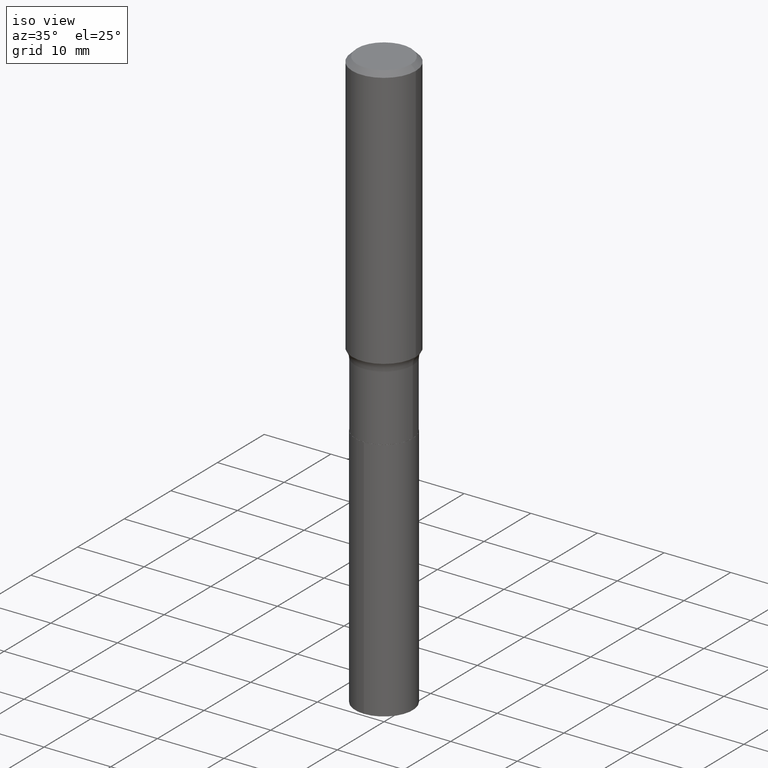
[diagram: clean part render]
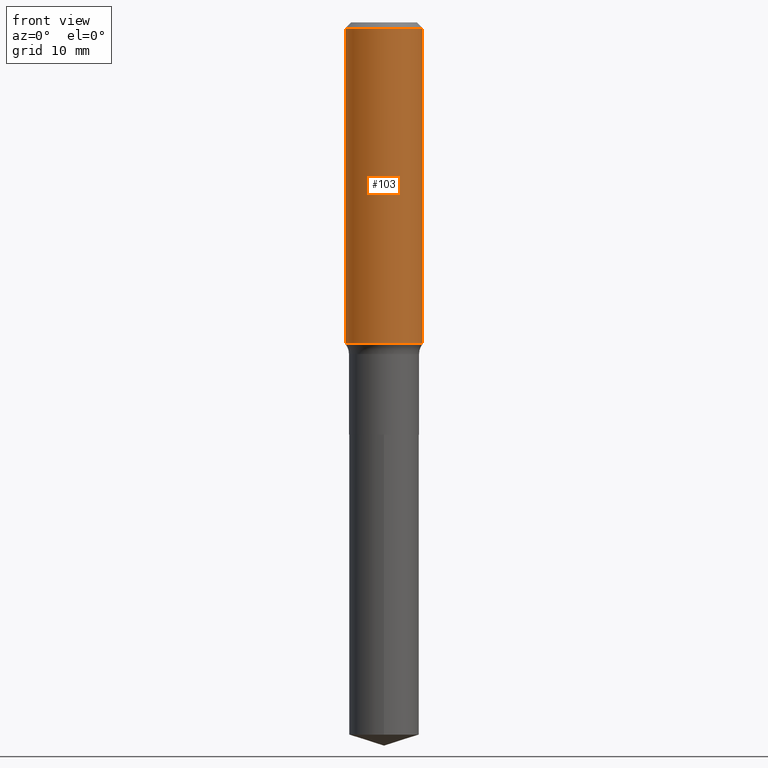
[diagram: tour spotlight — one face highlighted and labeled with its STEP entity id]
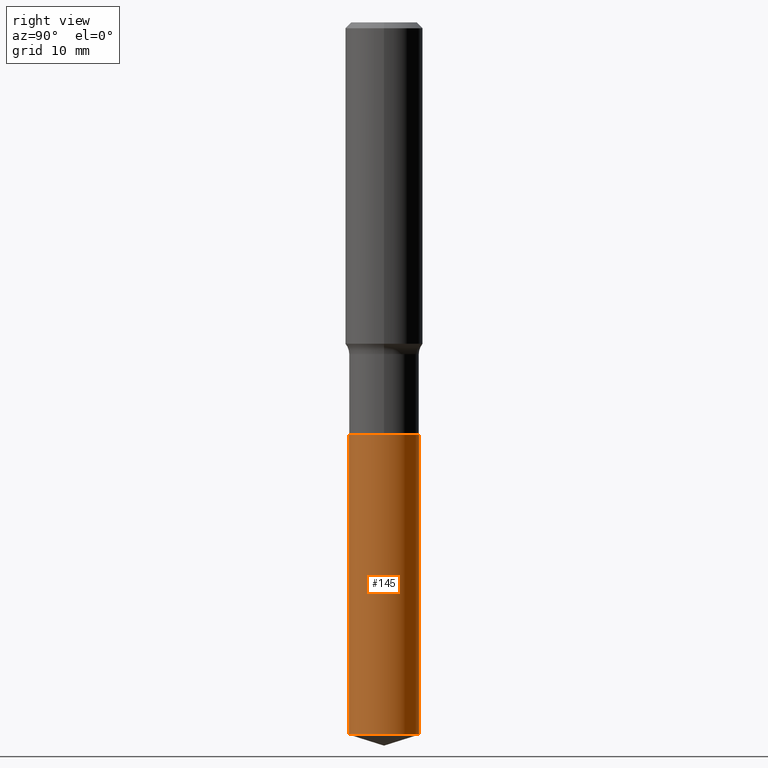
[diagram: tour spotlight — one face highlighted and labeled with its STEP entity id]
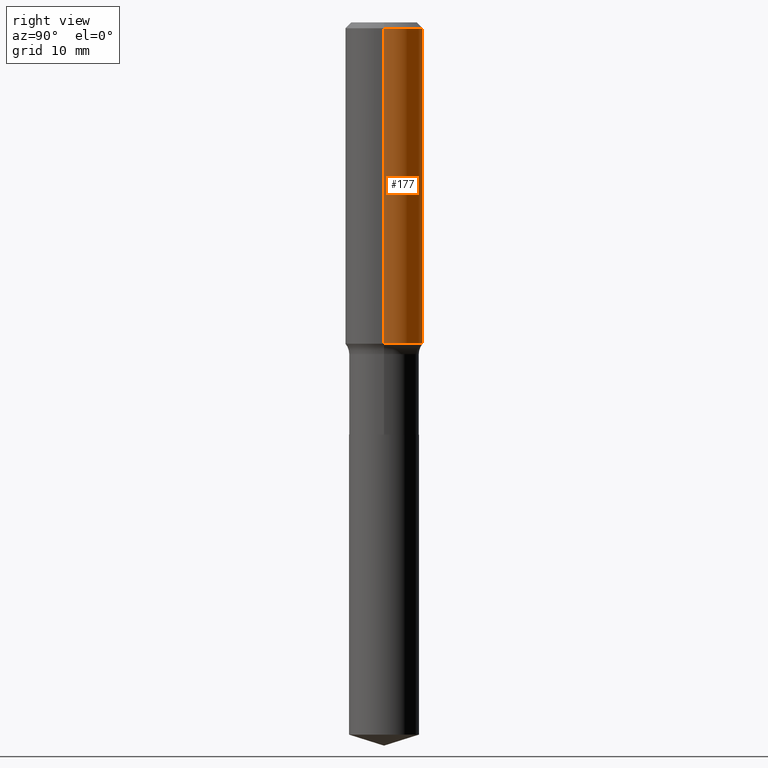
[diagram: tour spotlight — one face highlighted and labeled with its STEP entity id]
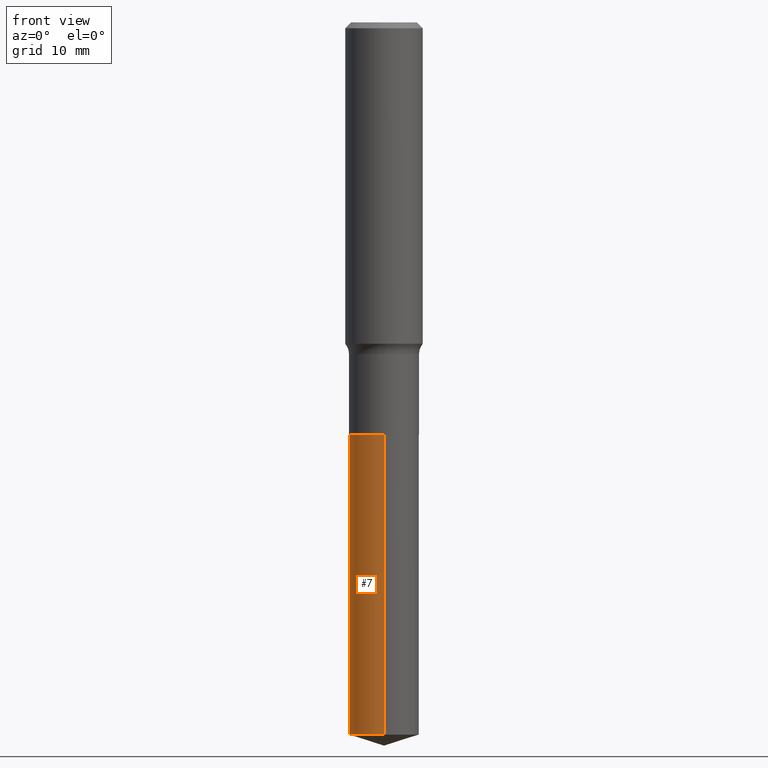
[diagram: tour spotlight — one face highlighted and labeled with its STEP entity id]
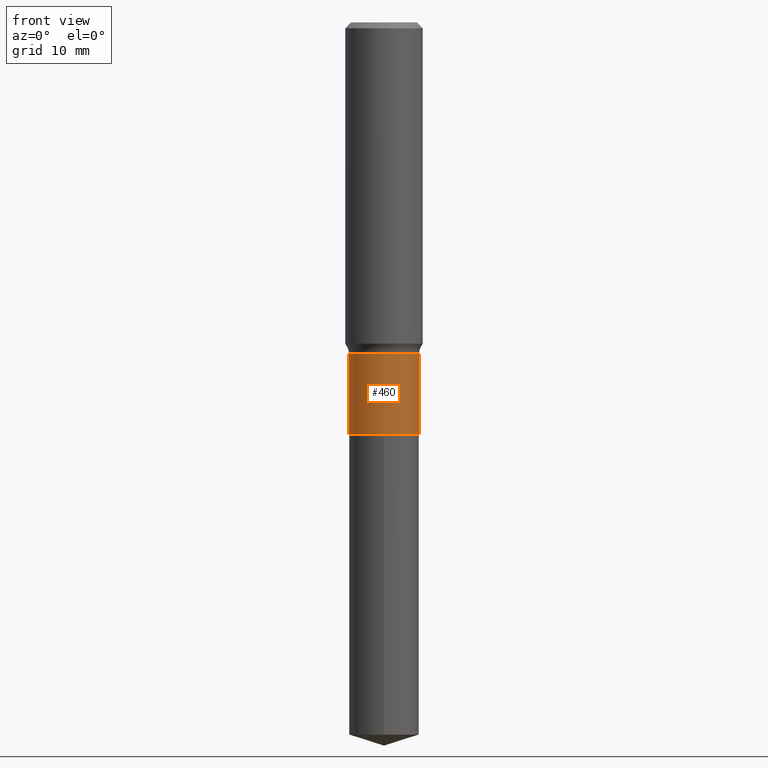
[diagram: tour spotlight — one face highlighted and labeled with its STEP entity id]
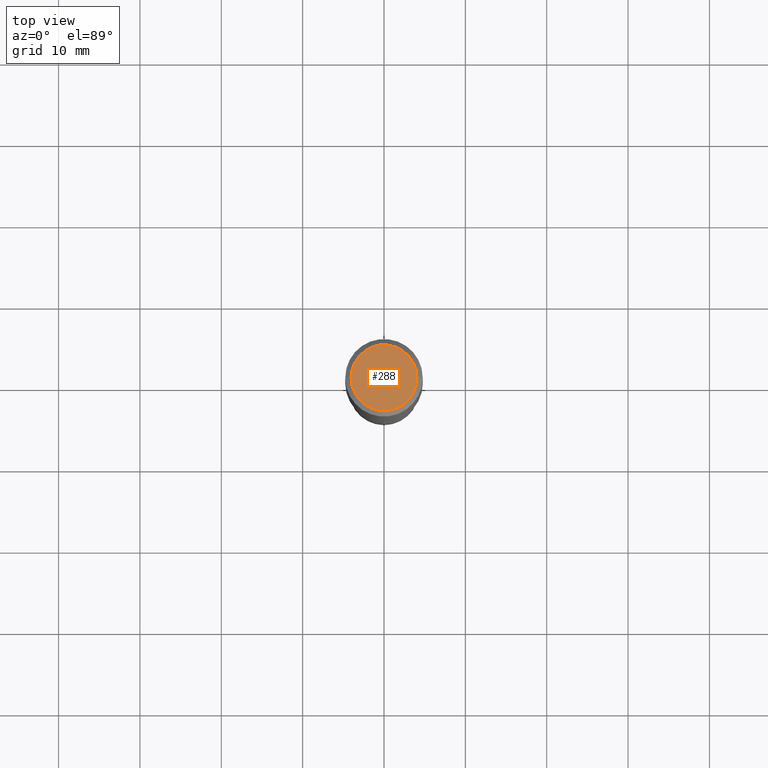
[diagram: tour spotlight — one face highlighted and labeled with its STEP entity id]
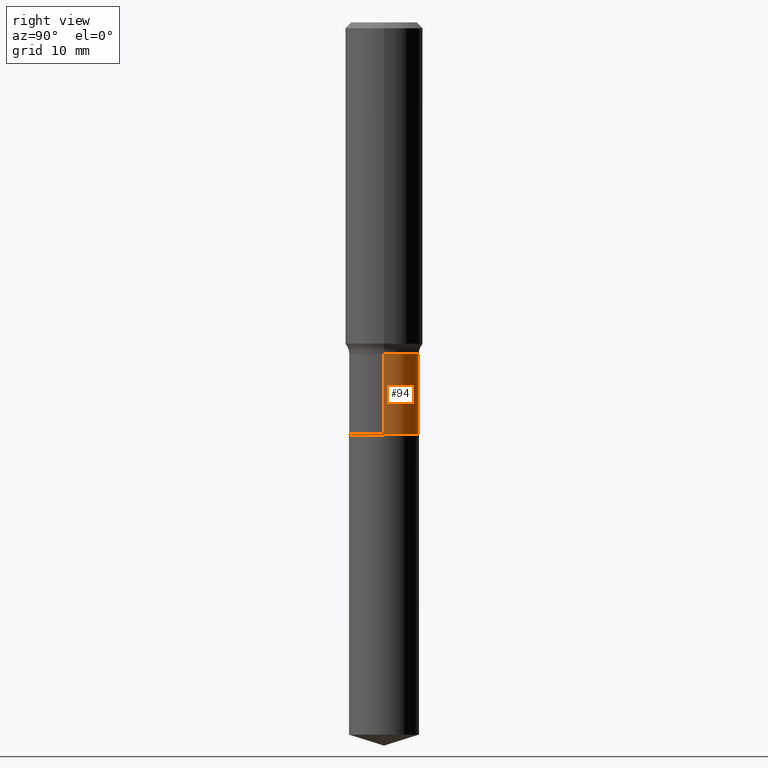
[diagram: tour spotlight — one face highlighted and labeled with its STEP entity id]
A machine part: a face-by-face anatomy tour. The part has 17 B-rep faces; the first image is the clean iso view, then the 7 largest visible faces are spotlighted one at a time (largest first), each with its STEP entity span.

Face 1 — front view, entity #103. In plain terms, the highlighted cylindrical surface (partial cylindrical patch) has radius 4.7625 mm, axis along (-0, 0, 1).
Definition (entity closure, byte-faithful):
#1 = CARTESIAN_POINT ( 'NONE',  ( 3.803829537320122674E-29, -5.430860460007894106E-15, -1.555460256822491116 ) ) ;
#18 = EDGE_CURVE ( 'NONE', #23, #283, #263, .T. ) ;
#23 = VERTEX_POINT ( 'NONE', #467 ) ;
#28 = CARTESIAN_POINT ( 'NONE',  ( -0.1875000000000001943, -4.098592830457705468E-15, -1.555460256822491116 ) ) ;
#29 = EDGE_CURVE ( 'NONE', #140, #23, #426, .T. ) ;
#38 = DIRECTION ( 'NONE',  ( -2.445468806185136877E-29, 3.491481338843145188E-15, 1.000000000000000000 ) ) ;
#56 = ORIENTED_EDGE ( 'NONE', *, *, #29, .F. ) ;
#58 = CARTESIAN_POINT ( 'NONE',  ( 6.877881017395745374E-31, -9.819791265496414867E-17, -0.02812500000000019498 ) ) ;
#72 = CARTESIAN_POINT ( 'NONE',  ( 0.1875000000000001110, -1.309305502066175797E-15, 9.142831454617385217E-30 ) ) ;
#78 = CARTESIAN_POINT ( 'NONE',  ( 0.1875000000000000555, -1.407503414721139514E-15, -0.02812500000000019498 ) ) ;
#88 = CARTESIAN_POINT ( 'NONE',  ( -0.1875000000000001110, 1.332267629550188637E-15, -9.223003294227953596E-30 ) ) ;
#99 = ORIENTED_EDGE ( 'NONE', *, *, #223, .T. ) ;
#103 = ADVANCED_FACE ( 'NONE', ( #189 ), #108, .T. ) ;
#108 = CYLINDRICAL_SURFACE ( 'NONE', #253, 0.1875000000000001110 ) ;
#117 = DIRECTION ( 'NONE',  ( 1.000000000000000000, -6.982962677686265922E-15, 0.000000000000000000 ) ) ;
#118 = AXIS2_PLACEMENT_3D ( 'NONE', #58, #255, #208 ) ;
#130 = CARTESIAN_POINT ( 'NONE',  ( 0.1875000000000001943, -6.740165962074070691E-15, -1.555460256822491116 ) ) ;
#140 = VERTEX_POINT ( 'NONE', #28 ) ;
#168 = LINE ( 'NONE', #72, #277 ) ;
#185 = DIRECTION ( 'NONE',  ( 1.000000000000000000, -6.982962677686266711E-15, 4.876176775795935793E-29 ) ) ;
#189 = FACE_OUTER_BOUND ( 'NONE', #382, .T. ) ;
#208 = DIRECTION ( 'NONE',  ( 1.000000000000000000, -6.982962677686265922E-15, 0.000000000000000000 ) ) ;
#220 = CARTESIAN_POINT ( 'NONE',  ( 0.000000000000000000, 0.000000000000000000, 0.000000000000000000 ) ) ;
#223 = EDGE_CURVE ( 'NONE', #140, #410, #490, .T. ) ;
#253 = AXIS2_PLACEMENT_3D ( 'NONE', #220, #452, #185 ) ;
#255 = DIRECTION ( 'NONE',  ( -2.445468806185136597E-29, 3.491481338843145583E-15, 1.000000000000000000 ) ) ;
#263 = CIRCLE ( 'NONE', #118, 0.1875000000000000555 ) ;
#277 = VECTOR ( 'NONE', #38, 39.37007874015748143 ) ;
#283 = VERTEX_POINT ( 'NONE', #78 ) ;
#327 = ORIENTED_EDGE ( 'NONE', *, *, #18, .F. ) ;
#364 = EDGE_CURVE ( 'NONE', #410, #283, #168, .T. ) ;
#382 = EDGE_LOOP ( 'NONE', ( #56, #99, #446, #327 ) ) ;
#398 = AXIS2_PLACEMENT_3D ( 'NONE', #1, #418, #117 ) ;
#402 = DIRECTION ( 'NONE',  ( -2.445468806185136877E-29, 3.491481338843145188E-15, 1.000000000000000000 ) ) ;
#410 = VERTEX_POINT ( 'NONE', #130 ) ;
#414 = VECTOR ( 'NONE', #402, 39.37007874015748143 ) ;
#418 = DIRECTION ( 'NONE',  ( -2.445468806185136597E-29, 3.491481338843145583E-15, 1.000000000000000000 ) ) ;
#426 = LINE ( 'NONE', #88, #414 ) ;
#446 = ORIENTED_EDGE ( 'NONE', *, *, #364, .T. ) ;
#452 = DIRECTION ( 'NONE',  ( -2.445468806185136597E-29, 3.491481338843145583E-15, 1.000000000000000000 ) ) ;
#467 = CARTESIAN_POINT ( 'NONE',  ( -0.1875000000000000555, -1.432261556781240274E-15, -0.02812500000000019498 ) ) ;
#490 = CIRCLE ( 'NONE', #398, 0.1875000000000001943 ) ;

Face 2 — right view, entity #145. In plain terms, the highlighted cylindrical surface (edge-blend (fillet) strip) has radius 4.3053 mm, axis along (-0, 0, 1).
Definition (entity closure, byte-faithful):
#34 = CARTESIAN_POINT ( 'NONE',  ( 4.879199362100584429E-29, -6.966203567259843153E-15, -1.995199999999999863 ) ) ;
#43 = CARTESIAN_POINT ( 'NONE',  ( 8.428108294785469424E-29, -1.203407438723772024E-14, -3.446556855285012322 ) ) ;
#48 = EDGE_CURVE ( 'NONE', #166, #372, #442, .T. ) ;
#65 = CIRCLE ( 'NONE', #449, 0.1694999999999999840 ) ;
#102 = FACE_OUTER_BOUND ( 'NONE', #240, .T. ) ;
#104 = CARTESIAN_POINT ( 'NONE',  ( 1.204369937113418216E-15, 0.1694999999999930174, -1.995200000000000307 ) ) ;
#114 = VERTEX_POINT ( 'NONE', #367 ) ;
#121 = DIRECTION ( 'NONE',  ( -6.982962677686265922E-15, -1.000000000000000000, 3.223419461550753343E-15 ) ) ;
#122 = ORIENTED_EDGE ( 'NONE', *, *, #48, .T. ) ;
#126 = LINE ( 'NONE', #326, #293 ) ;
#133 = VERTEX_POINT ( 'NONE', #374 ) ;
#145 = ADVANCED_FACE ( 'NONE', ( #102 ), #193, .T. ) ;
#158 = DIRECTION ( 'NONE',  ( -2.445235242980929493E-29, 3.491815814645162055E-15, 1.000000000000000000 ) ) ;
#166 = VERTEX_POINT ( 'NONE', #482 ) ;
#193 = CYLINDRICAL_SURFACE ( 'NONE', #209, 0.1694999999999999840 ) ;
#195 = DIRECTION ( 'NONE',  ( -6.982962677686265922E-15, -1.000000000000000000, 3.223419461550753343E-15 ) ) ;
#196 = CIRCLE ( 'NONE', #352, 0.1694999999999999840 ) ;
#209 = AXIS2_PLACEMENT_3D ( 'NONE', #34, #484, #195 ) ;
#234 = DIRECTION ( 'NONE',  ( -6.982962677686265922E-15, -1.000000000000000000, 3.223419461550753343E-15 ) ) ;
#239 = CARTESIAN_POINT ( 'NONE',  ( 1.204369937113453912E-15, 0.1694999999999930174, -1.995200000000000307 ) ) ;
#240 = EDGE_LOOP ( 'NONE', ( #419, #122, #464, #472 ) ) ;
#244 = VECTOR ( 'NONE', #333, 39.37007874015748143 ) ;
#245 = EDGE_CURVE ( 'NONE', #133, #372, #196, .T. ) ;
#246 = DIRECTION ( 'NONE',  ( -2.445235242980929773E-29, 3.491815814645162055E-15, 1.000000000000000000 ) ) ;
#293 = VECTOR ( 'NONE', #246, 39.37007874015748143 ) ;
#326 = CARTESIAN_POINT ( 'NONE',  ( -1.183612173867773306E-15, -0.1695000000000069507, -1.995199999999999196 ) ) ;
#333 = DIRECTION ( 'NONE',  ( -2.445235242980929773E-29, 3.491815814645162055E-15, 1.000000000000000000 ) ) ;
#335 = EDGE_CURVE ( 'NONE', #114, #166, #65, .T. ) ;
#352 = AXIS2_PLACEMENT_3D ( 'NONE', #415, #463, #121 ) ;
#367 = CARTESIAN_POINT ( 'NONE',  ( -1.183612173867737807E-15, -0.1695000000000119744, -3.446556855285011878 ) ) ;
#372 = VERTEX_POINT ( 'NONE', #239 ) ;
#374 = CARTESIAN_POINT ( 'NONE',  ( -1.183612173867773306E-15, -0.1695000000000069507, -1.995199999999999196 ) ) ;
#409 = EDGE_CURVE ( 'NONE', #114, #133, #126, .T. ) ;
#415 = CARTESIAN_POINT ( 'NONE',  ( 4.879199362100584429E-29, -6.966203567259843153E-15, -1.995199999999999863 ) ) ;
#419 = ORIENTED_EDGE ( 'NONE', *, *, #335, .T. ) ;
#442 = LINE ( 'NONE', #104, #244 ) ;
#449 = AXIS2_PLACEMENT_3D ( 'NONE', #43, #158, #234 ) ;
#463 = DIRECTION ( 'NONE',  ( -2.445235242980929493E-29, 3.491815814645162055E-15, 1.000000000000000000 ) ) ;
#464 = ORIENTED_EDGE ( 'NONE', *, *, #245, .F. ) ;
#472 = ORIENTED_EDGE ( 'NONE', *, *, #409, .F. ) ;
#482 = CARTESIAN_POINT ( 'NONE',  ( 1.204369937113453715E-15, 0.1694999999999879381, -3.446556855285012766 ) ) ;
#484 = DIRECTION ( 'NONE',  ( -2.445235242980929493E-29, 3.491815814645162055E-15, 1.000000000000000000 ) ) ;

Face 3 — right view, entity #177. In plain terms, the highlighted cylindrical surface (partial cylindrical patch) has radius 4.7625 mm, axis along (-0, 0, 1).
Definition (entity closure, byte-faithful):
#12 = AXIS2_PLACEMENT_3D ( 'NONE', #57, #13, #393 ) ;
#13 = DIRECTION ( 'NONE',  ( -2.445468806185136597E-29, 3.491481338843145583E-15, 1.000000000000000000 ) ) ;
#23 = VERTEX_POINT ( 'NONE', #467 ) ;
#24 = DIRECTION ( 'NONE',  ( -2.445468806185136597E-29, 3.491481338843145583E-15, 1.000000000000000000 ) ) ;
#28 = CARTESIAN_POINT ( 'NONE',  ( -0.1875000000000001943, -4.098592830457705468E-15, -1.555460256822491116 ) ) ;
#29 = EDGE_CURVE ( 'NONE', #140, #23, #426, .T. ) ;
#32 = ORIENTED_EDGE ( 'NONE', *, *, #364, .F. ) ;
#38 = DIRECTION ( 'NONE',  ( -2.445468806185136877E-29, 3.491481338843145188E-15, 1.000000000000000000 ) ) ;
#47 = ORIENTED_EDGE ( 'NONE', *, *, #74, .T. ) ;
#57 = CARTESIAN_POINT ( 'NONE',  ( 6.877881017395745374E-31, -9.819791265496414867E-17, -0.02812500000000019498 ) ) ;
#72 = CARTESIAN_POINT ( 'NONE',  ( 0.1875000000000001110, -1.309305502066175797E-15, 9.142831454617385217E-30 ) ) ;
#74 = EDGE_CURVE ( 'NONE', #410, #140, #307, .T. ) ;
#75 = CIRCLE ( 'NONE', #12, 0.1875000000000000555 ) ;
#78 = CARTESIAN_POINT ( 'NONE',  ( 0.1875000000000000555, -1.407503414721139514E-15, -0.02812500000000019498 ) ) ;
#88 = CARTESIAN_POINT ( 'NONE',  ( -0.1875000000000001110, 1.332267629550188637E-15, -9.223003294227953596E-30 ) ) ;
#112 = FACE_OUTER_BOUND ( 'NONE', #205, .T. ) ;
#130 = CARTESIAN_POINT ( 'NONE',  ( 0.1875000000000001943, -6.740165962074070691E-15, -1.555460256822491116 ) ) ;
#140 = VERTEX_POINT ( 'NONE', #28 ) ;
#168 = LINE ( 'NONE', #72, #277 ) ;
#173 = ORIENTED_EDGE ( 'NONE', *, *, #29, .T. ) ;
#177 = ADVANCED_FACE ( 'NONE', ( #112 ), #187, .T. ) ;
#179 = AXIS2_PLACEMENT_3D ( 'NONE', #217, #408, #445 ) ;
#187 = CYLINDRICAL_SURFACE ( 'NONE', #179, 0.1875000000000001110 ) ;
#205 = EDGE_LOOP ( 'NONE', ( #47, #173, #389, #32 ) ) ;
#217 = CARTESIAN_POINT ( 'NONE',  ( 0.000000000000000000, 0.000000000000000000, 0.000000000000000000 ) ) ;
#222 = DIRECTION ( 'NONE',  ( 1.000000000000000000, -6.982962677686265922E-15, 0.000000000000000000 ) ) ;
#277 = VECTOR ( 'NONE', #38, 39.37007874015748143 ) ;
#283 = VERTEX_POINT ( 'NONE', #78 ) ;
#297 = CARTESIAN_POINT ( 'NONE',  ( 3.803829537320122674E-29, -5.430860460007894106E-15, -1.555460256822491116 ) ) ;
#307 = CIRCLE ( 'NONE', #320, 0.1875000000000001943 ) ;
#320 = AXIS2_PLACEMENT_3D ( 'NONE', #297, #24, #222 ) ;
#364 = EDGE_CURVE ( 'NONE', #410, #283, #168, .T. ) ;
#389 = ORIENTED_EDGE ( 'NONE', *, *, #474, .F. ) ;
#393 = DIRECTION ( 'NONE',  ( 1.000000000000000000, -6.982962677686265922E-15, 0.000000000000000000 ) ) ;
#402 = DIRECTION ( 'NONE',  ( -2.445468806185136877E-29, 3.491481338843145188E-15, 1.000000000000000000 ) ) ;
#408 = DIRECTION ( 'NONE',  ( -2.445468806185136597E-29, 3.491481338843145583E-15, 1.000000000000000000 ) ) ;
#410 = VERTEX_POINT ( 'NONE', #130 ) ;
#414 = VECTOR ( 'NONE', #402, 39.37007874015748143 ) ;
#426 = LINE ( 'NONE', #88, #414 ) ;
#445 = DIRECTION ( 'NONE',  ( 1.000000000000000000, -6.982962677686266711E-15, 4.876176775795935793E-29 ) ) ;
#467 = CARTESIAN_POINT ( 'NONE',  ( -0.1875000000000000555, -1.432261556781240274E-15, -0.02812500000000019498 ) ) ;
#474 = EDGE_CURVE ( 'NONE', #283, #23, #75, .T. ) ;

Face 4 — front view, entity #7. In plain terms, the highlighted cylindrical surface (edge-blend (fillet) strip) has radius 4.3053 mm, axis along (-0, 0, 1).
Definition (entity closure, byte-faithful):
#7 = ADVANCED_FACE ( 'NONE', ( #136 ), #286, .T. ) ;
#11 = DIRECTION ( 'NONE',  ( -2.445235242980929493E-29, 3.491815814645162055E-15, 1.000000000000000000 ) ) ;
#19 = ORIENTED_EDGE ( 'NONE', *, *, #107, .F. ) ;
#21 = EDGE_CURVE ( 'NONE', #166, #114, #42, .T. ) ;
#42 = CIRCLE ( 'NONE', #91, 0.1694999999999999840 ) ;
#45 = ORIENTED_EDGE ( 'NONE', *, *, #409, .T. ) ;
#48 = EDGE_CURVE ( 'NONE', #166, #372, #442, .T. ) ;
#49 = CARTESIAN_POINT ( 'NONE',  ( 4.879199362100584429E-29, -6.966203567259843153E-15, -1.995199999999999863 ) ) ;
#64 = AXIS2_PLACEMENT_3D ( 'NONE', #156, #405, #328 ) ;
#73 = AXIS2_PLACEMENT_3D ( 'NONE', #49, #435, #97 ) ;
#91 = AXIS2_PLACEMENT_3D ( 'NONE', #351, #11, #215 ) ;
#97 = DIRECTION ( 'NONE',  ( -6.982962677686265922E-15, -1.000000000000000000, 3.223419461550753343E-15 ) ) ;
#104 = CARTESIAN_POINT ( 'NONE',  ( 1.204369937113418216E-15, 0.1694999999999930174, -1.995200000000000307 ) ) ;
#107 = EDGE_CURVE ( 'NONE', #372, #133, #188, .T. ) ;
#114 = VERTEX_POINT ( 'NONE', #367 ) ;
#126 = LINE ( 'NONE', #326, #293 ) ;
#133 = VERTEX_POINT ( 'NONE', #374 ) ;
#136 = FACE_OUTER_BOUND ( 'NONE', #476, .T. ) ;
#156 = CARTESIAN_POINT ( 'NONE',  ( 4.879199362100584429E-29, -6.966203567259843153E-15, -1.995199999999999863 ) ) ;
#166 = VERTEX_POINT ( 'NONE', #482 ) ;
#188 = CIRCLE ( 'NONE', #64, 0.1694999999999999840 ) ;
#215 = DIRECTION ( 'NONE',  ( -6.982962677686265922E-15, -1.000000000000000000, 3.223419461550753343E-15 ) ) ;
#239 = CARTESIAN_POINT ( 'NONE',  ( 1.204369937113453912E-15, 0.1694999999999930174, -1.995200000000000307 ) ) ;
#244 = VECTOR ( 'NONE', #333, 39.37007874015748143 ) ;
#246 = DIRECTION ( 'NONE',  ( -2.445235242980929773E-29, 3.491815814645162055E-15, 1.000000000000000000 ) ) ;
#286 = CYLINDRICAL_SURFACE ( 'NONE', #73, 0.1694999999999999840 ) ;
#293 = VECTOR ( 'NONE', #246, 39.37007874015748143 ) ;
#319 = ORIENTED_EDGE ( 'NONE', *, *, #48, .F. ) ;
#326 = CARTESIAN_POINT ( 'NONE',  ( -1.183612173867773306E-15, -0.1695000000000069507, -1.995199999999999196 ) ) ;
#328 = DIRECTION ( 'NONE',  ( -6.982962677686265922E-15, -1.000000000000000000, 3.223419461550753343E-15 ) ) ;
#333 = DIRECTION ( 'NONE',  ( -2.445235242980929773E-29, 3.491815814645162055E-15, 1.000000000000000000 ) ) ;
#351 = CARTESIAN_POINT ( 'NONE',  ( 8.428108294785469424E-29, -1.203407438723772024E-14, -3.446556855285012322 ) ) ;
#367 = CARTESIAN_POINT ( 'NONE',  ( -1.183612173867737807E-15, -0.1695000000000119744, -3.446556855285011878 ) ) ;
#372 = VERTEX_POINT ( 'NONE', #239 ) ;
#374 = CARTESIAN_POINT ( 'NONE',  ( -1.183612173867773306E-15, -0.1695000000000069507, -1.995199999999999196 ) ) ;
#405 = DIRECTION ( 'NONE',  ( -2.445235242980929493E-29, 3.491815814645162055E-15, 1.000000000000000000 ) ) ;
#409 = EDGE_CURVE ( 'NONE', #114, #133, #126, .T. ) ;
#435 = DIRECTION ( 'NONE',  ( -2.445235242980929493E-29, 3.491815814645162055E-15, 1.000000000000000000 ) ) ;
#442 = LINE ( 'NONE', #104, #244 ) ;
#476 = EDGE_LOOP ( 'NONE', ( #319, #485, #45, #19 ) ) ;
#482 = CARTESIAN_POINT ( 'NONE',  ( 1.204369937113453715E-15, 0.1694999999999879381, -3.446556855285012766 ) ) ;
#485 = ORIENTED_EDGE ( 'NONE', *, *, #21, .T. ) ;

Face 5 — front view, entity #460. In plain terms, the highlighted cylindrical surface (edge-blend (fillet) strip) has radius 4.3053 mm, axis along (-0, 0, 1).
Definition (entity closure, byte-faithful):
#9 = CARTESIAN_POINT ( 'NONE',  ( 0.1694999999999999840, -8.148070000458243668E-15, -1.994699999999999918 ) ) ;
#37 = CIRCLE ( 'NONE', #369, 0.1694999999999999563 ) ;
#62 = LINE ( 'NONE', #371, #429 ) ;
#85 = ORIENTED_EDGE ( 'NONE', *, *, #281, .T. ) ;
#86 = EDGE_CURVE ( 'NONE', #451, #462, #62, .T. ) ;
#100 = AXIS2_PLACEMENT_3D ( 'NONE', #278, #317, #473 ) ;
#109 = VECTOR ( 'NONE', #339, 39.37007874015748143 ) ;
#113 = EDGE_CURVE ( 'NONE', #334, #349, #262, .T. ) ;
#127 = ORIENTED_EDGE ( 'NONE', *, *, #86, .F. ) ;
#147 = DIRECTION ( 'NONE',  ( -2.445468806185136877E-29, 3.491481338843145188E-15, 1.000000000000000000 ) ) ;
#171 = AXIS2_PLACEMENT_3D ( 'NONE', #417, #376, #458 ) ;
#198 = DIRECTION ( 'NONE',  ( 1.000000000000000000, -6.982962677686268288E-15, 0.000000000000000000 ) ) ;
#211 = CARTESIAN_POINT ( 'NONE',  ( -0.1694999999999999840, -5.080296472804291637E-15, -1.994699999999999918 ) ) ;
#212 = ORIENTED_EDGE ( 'NONE', *, *, #321, .F. ) ;
#236 = DIRECTION ( 'NONE',  ( -2.445468806185136597E-29, 3.491481338843145583E-15, 1.000000000000000000 ) ) ;
#262 = LINE ( 'NONE', #478, #109 ) ;
#266 = CARTESIAN_POINT ( 'NONE',  ( 3.925711074568998551E-29, -5.604874993244900239E-15, -1.605299999999999727 ) ) ;
#278 = CARTESIAN_POINT ( 'NONE',  ( 0.000000000000000000, 0.000000000000000000, 0.000000000000000000 ) ) ;
#281 = EDGE_CURVE ( 'NONE', #451, #334, #384, .T. ) ;
#285 = FACE_OUTER_BOUND ( 'NONE', #428, .T. ) ;
#287 = CYLINDRICAL_SURFACE ( 'NONE', #100, 0.1694999999999999840 ) ;
#317 = DIRECTION ( 'NONE',  ( -2.445468806185136597E-29, 3.491481338843145583E-15, 1.000000000000000000 ) ) ;
#321 = EDGE_CURVE ( 'NONE', #462, #349, #37, .T. ) ;
#334 = VERTEX_POINT ( 'NONE', #9 ) ;
#337 = ORIENTED_EDGE ( 'NONE', *, *, #113, .T. ) ;
#339 = DIRECTION ( 'NONE',  ( -2.445468806185136877E-29, 3.491481338843145188E-15, 1.000000000000000000 ) ) ;
#341 = CARTESIAN_POINT ( 'NONE',  ( 0.1694999999999999563, -6.788487167112723046E-15, -1.605299999999999727 ) ) ;
#349 = VERTEX_POINT ( 'NONE', #341 ) ;
#357 = CARTESIAN_POINT ( 'NONE',  ( -0.1694999999999999563, -5.080296472804291637E-15, -1.605299999999999727 ) ) ;
#369 = AXIS2_PLACEMENT_3D ( 'NONE', #266, #236, #198 ) ;
#371 = CARTESIAN_POINT ( 'NONE',  ( -0.1694999999999999840, 1.204369937113369701E-15, -8.337594977982064546E-30 ) ) ;
#376 = DIRECTION ( 'NONE',  ( -2.445468806185136597E-29, 3.491481338843145583E-15, 1.000000000000000000 ) ) ;
#384 = CIRCLE ( 'NONE', #171, 0.1694999999999999840 ) ;
#417 = CARTESIAN_POINT ( 'NONE',  ( 4.877976627697491628E-29, -6.964457826590421650E-15, -1.994699999999999918 ) ) ;
#428 = EDGE_LOOP ( 'NONE', ( #127, #85, #337, #212 ) ) ;
#429 = VECTOR ( 'NONE', #147, 39.37007874015748143 ) ;
#451 = VERTEX_POINT ( 'NONE', #211 ) ;
#458 = DIRECTION ( 'NONE',  ( 1.000000000000000000, -6.982962677686267499E-15, 0.000000000000000000 ) ) ;
#460 = ADVANCED_FACE ( 'NONE', ( #285 ), #287, .T. ) ;
#462 = VERTEX_POINT ( 'NONE', #357 ) ;
#473 = DIRECTION ( 'NONE',  ( 1.000000000000000000, -6.982962677686267499E-15, 4.876176775795935793E-29 ) ) ;
#478 = CARTESIAN_POINT ( 'NONE',  ( 0.1694999999999999840, -1.183612173867822215E-15, 8.265119634974110104E-30 ) ) ;

Face 6 — top view, entity #288. In plain terms, the highlighted planar face has unit normal (0, -0, -1).
Definition (entity closure, byte-faithful):
#63 = CARTESIAN_POINT ( 'NONE',  ( -7.955031918821655674E-47, 1.135767727816384611E-32, 3.252968060235159768E-18 ) ) ;
#84 = ORIENTED_EDGE ( 'NONE', *, *, #128, .T. ) ;
#128 = EDGE_CURVE ( 'NONE', #214, #315, #284, .T. ) ;
#182 = CARTESIAN_POINT ( 'NONE',  ( -7.955031918821655674E-47, 1.135767727816384611E-32, 3.252968060235159768E-18 ) ) ;
#214 = VERTEX_POINT ( 'NONE', #273 ) ;
#235 = PLANE ( 'NONE',  #491 ) ;
#238 = AXIS2_PLACEMENT_3D ( 'NONE', #63, #399, #370 ) ;
#267 = DIRECTION ( 'NONE',  ( 2.438088387897960049E-29, -3.491481338843145188E-15, -1.000000000000000000 ) ) ;
#269 = CIRCLE ( 'NONE', #340, 0.1593749999999999889 ) ;
#271 = DIRECTION ( 'NONE',  ( -1.000000000000000000, 6.982962677686265922E-15, -4.876176775795935793E-29 ) ) ;
#273 = CARTESIAN_POINT ( 'NONE',  ( 0.1593749999999999889, -1.238966577815982495E-15, 3.252968060243383104E-18 ) ) ;
#282 = DIRECTION ( 'NONE',  ( -2.445468806185136597E-29, 3.491481338843145583E-15, 1.000000000000000000 ) ) ;
#284 = CIRCLE ( 'NONE', #238, 0.1593749999999999889 ) ;
#288 = ADVANCED_FACE ( 'NONE', ( #306 ), #235, .F. ) ;
#306 = FACE_OUTER_BOUND ( 'NONE', #489, .T. ) ;
#310 = ORIENTED_EDGE ( 'NONE', *, *, #400, .T. ) ;
#315 = VERTEX_POINT ( 'NONE', #378 ) ;
#340 = AXIS2_PLACEMENT_3D ( 'NONE', #182, #282, #354 ) ;
#348 = CARTESIAN_POINT ( 'NONE',  ( -3.977515959410827837E-47, 5.678838639081923055E-33, 1.626484030117579884E-18 ) ) ;
#354 = DIRECTION ( 'NONE',  ( 1.000000000000000000, -6.982962677686267499E-15, 4.876227444496879000E-29 ) ) ;
#370 = DIRECTION ( 'NONE',  ( 1.000000000000000000, -6.982962677686267499E-15, 4.876227444496879000E-29 ) ) ;
#378 = CARTESIAN_POINT ( 'NONE',  ( -0.1593749999999999889, 1.162008633083729827E-15, 3.252968060227205293E-18 ) ) ;
#399 = DIRECTION ( 'NONE',  ( -2.445468806185136597E-29, 3.491481338843145583E-15, 1.000000000000000000 ) ) ;
#400 = EDGE_CURVE ( 'NONE', #315, #214, #269, .T. ) ;
#489 = EDGE_LOOP ( 'NONE', ( #310, #84 ) ) ;
#491 = AXIS2_PLACEMENT_3D ( 'NONE', #348, #267, #271 ) ;

Face 7 — right view, entity #94. In plain terms, the highlighted cylindrical surface (edge-blend (fillet) strip) has radius 4.3053 mm, axis along (-0, 0, 1).
Definition (entity closure, byte-faithful):
#9 = CARTESIAN_POINT ( 'NONE',  ( 0.1694999999999999840, -8.148070000458243668E-15, -1.994699999999999918 ) ) ;
#20 = CIRCLE ( 'NONE', #160, 0.1694999999999999563 ) ;
#31 = CYLINDRICAL_SURFACE ( 'NONE', #170, 0.1694999999999999840 ) ;
#41 = EDGE_CURVE ( 'NONE', #349, #462, #20, .T. ) ;
#62 = LINE ( 'NONE', #371, #429 ) ;
#86 = EDGE_CURVE ( 'NONE', #451, #462, #62, .T. ) ;
#94 = ADVANCED_FACE ( 'NONE', ( #115 ), #31, .T. ) ;
#109 = VECTOR ( 'NONE', #339, 39.37007874015748143 ) ;
#113 = EDGE_CURVE ( 'NONE', #334, #349, #262, .T. ) ;
#115 = FACE_OUTER_BOUND ( 'NONE', #298, .T. ) ;
#147 = DIRECTION ( 'NONE',  ( -2.445468806185136877E-29, 3.491481338843145188E-15, 1.000000000000000000 ) ) ;
#160 = AXIS2_PLACEMENT_3D ( 'NONE', #295, #365, #304 ) ;
#170 = AXIS2_PLACEMENT_3D ( 'NONE', #260, #411, #228 ) ;
#203 = AXIS2_PLACEMENT_3D ( 'NONE', #468, #391, #388 ) ;
#211 = CARTESIAN_POINT ( 'NONE',  ( -0.1694999999999999840, -5.080296472804291637E-15, -1.994699999999999918 ) ) ;
#228 = DIRECTION ( 'NONE',  ( 1.000000000000000000, -6.982962677686267499E-15, 4.876176775795935793E-29 ) ) ;
#260 = CARTESIAN_POINT ( 'NONE',  ( 0.000000000000000000, 0.000000000000000000, 0.000000000000000000 ) ) ;
#262 = LINE ( 'NONE', #478, #109 ) ;
#295 = CARTESIAN_POINT ( 'NONE',  ( 3.925711074568998551E-29, -5.604874993244900239E-15, -1.605299999999999727 ) ) ;
#298 = EDGE_LOOP ( 'NONE', ( #360, #318, #424, #412 ) ) ;
#304 = DIRECTION ( 'NONE',  ( 1.000000000000000000, -6.982962677686268288E-15, 0.000000000000000000 ) ) ;
#318 = ORIENTED_EDGE ( 'NONE', *, *, #86, .T. ) ;
#334 = VERTEX_POINT ( 'NONE', #9 ) ;
#339 = DIRECTION ( 'NONE',  ( -2.445468806185136877E-29, 3.491481338843145188E-15, 1.000000000000000000 ) ) ;
#341 = CARTESIAN_POINT ( 'NONE',  ( 0.1694999999999999563, -6.788487167112723046E-15, -1.605299999999999727 ) ) ;
#349 = VERTEX_POINT ( 'NONE', #341 ) ;
#357 = CARTESIAN_POINT ( 'NONE',  ( -0.1694999999999999563, -5.080296472804291637E-15, -1.605299999999999727 ) ) ;
#360 = ORIENTED_EDGE ( 'NONE', *, *, #470, .T. ) ;
#365 = DIRECTION ( 'NONE',  ( -2.445468806185136597E-29, 3.491481338843145583E-15, 1.000000000000000000 ) ) ;
#371 = CARTESIAN_POINT ( 'NONE',  ( -0.1694999999999999840, 1.204369937113369701E-15, -8.337594977982064546E-30 ) ) ;
#377 = CIRCLE ( 'NONE', #203, 0.1694999999999999840 ) ;
#388 = DIRECTION ( 'NONE',  ( 1.000000000000000000, -6.982962677686267499E-15, 0.000000000000000000 ) ) ;
#391 = DIRECTION ( 'NONE',  ( -2.445468806185136597E-29, 3.491481338843145583E-15, 1.000000000000000000 ) ) ;
#411 = DIRECTION ( 'NONE',  ( -2.445468806185136597E-29, 3.491481338843145583E-15, 1.000000000000000000 ) ) ;
#412 = ORIENTED_EDGE ( 'NONE', *, *, #113, .F. ) ;
#424 = ORIENTED_EDGE ( 'NONE', *, *, #41, .F. ) ;
#429 = VECTOR ( 'NONE', #147, 39.37007874015748143 ) ;
#451 = VERTEX_POINT ( 'NONE', #211 ) ;
#462 = VERTEX_POINT ( 'NONE', #357 ) ;
#468 = CARTESIAN_POINT ( 'NONE',  ( 4.877976627697491628E-29, -6.964457826590421650E-15, -1.994699999999999918 ) ) ;
#470 = EDGE_CURVE ( 'NONE', #334, #451, #377, .T. ) ;
#478 = CARTESIAN_POINT ( 'NONE',  ( 0.1694999999999999840, -1.183612173867822215E-15, 8.265119634974110104E-30 ) ) ;